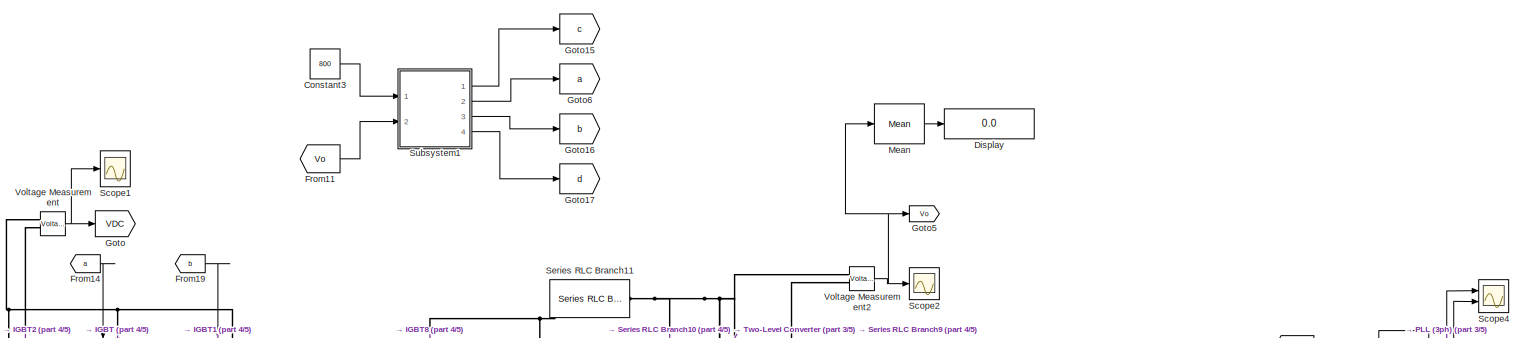
[diagram: root canvas - part 1/5, top center region]
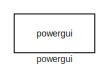
[diagram: root canvas - part 2/5, top left region]
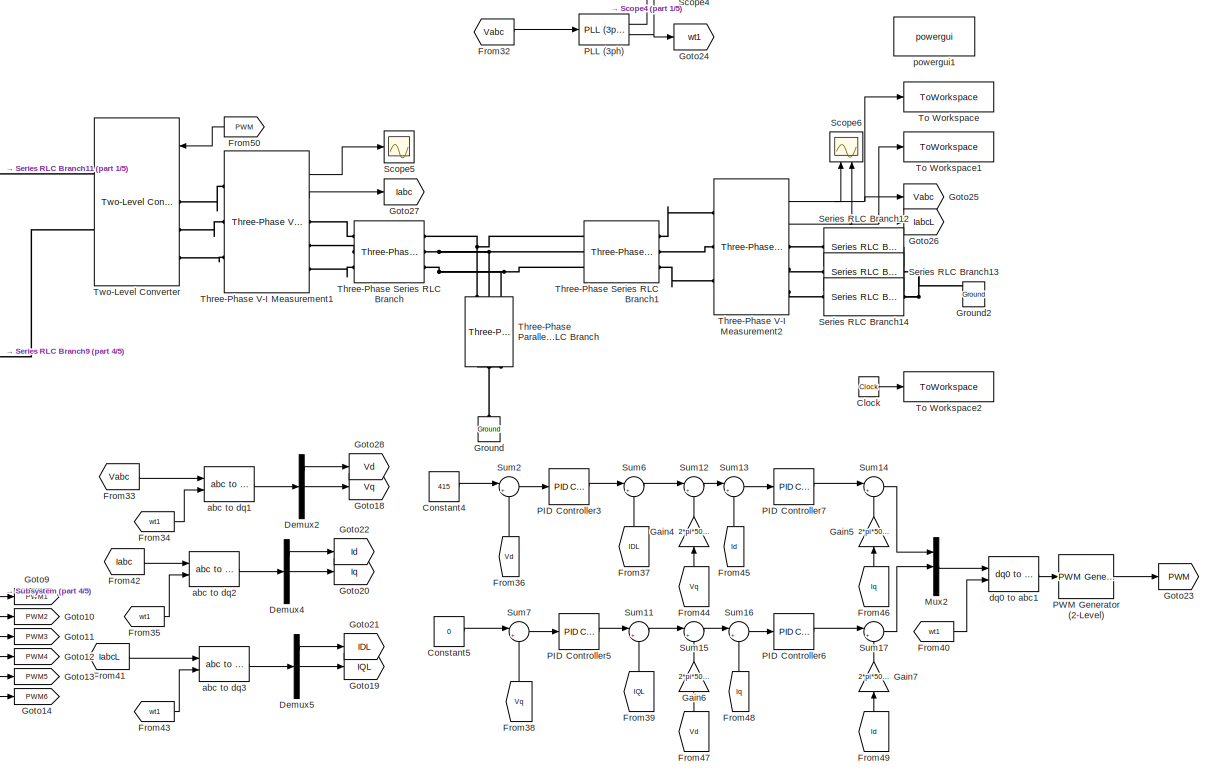
[diagram: root canvas - part 3/5, middle right region]
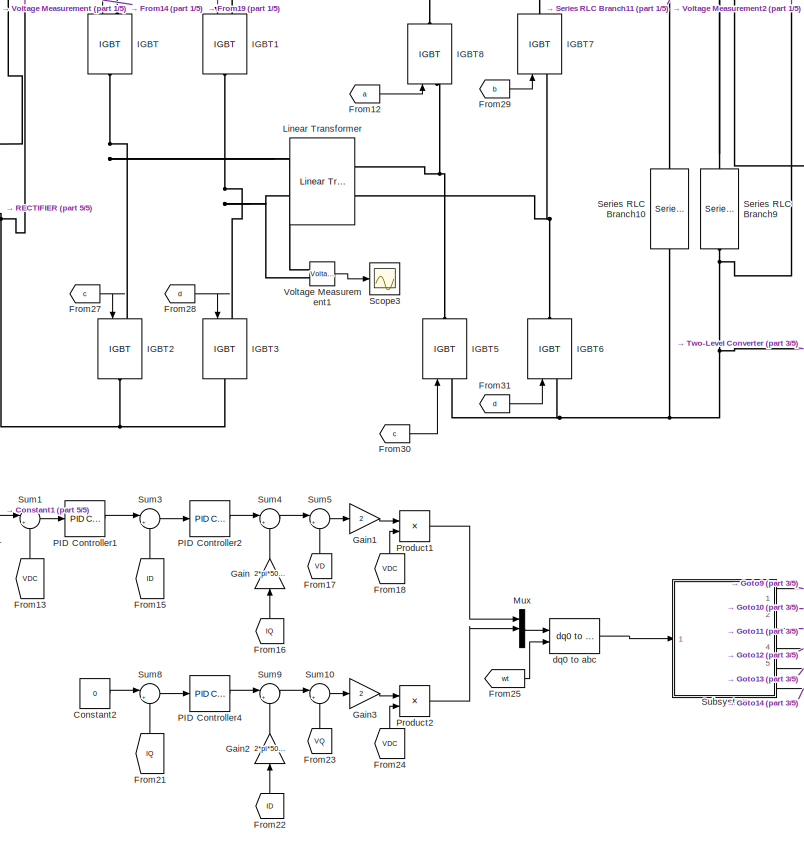
[diagram: root canvas - part 4/5, central region]
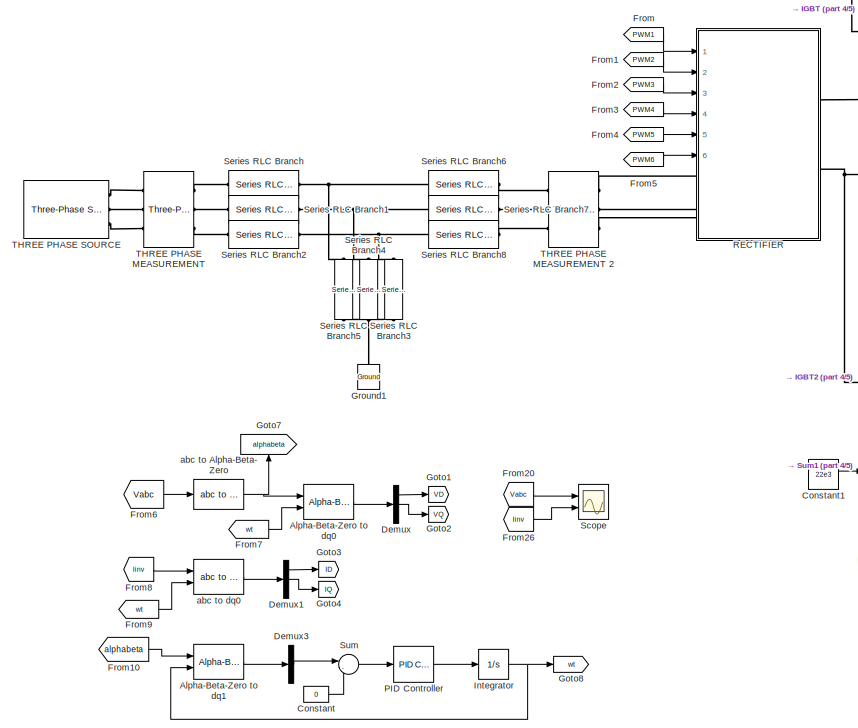
[diagram: root canvas - part 5/5, middle left region]
MODEL slx_5b53544572d5
KIND model
CONFIG AbsTol = auto
CONFIG EnableMultiTasking = off
CONFIG FixedStep = auto
CONFIG MaxStep = auto
CONFIG MinStep = auto
CONFIG RelTol = 1e-3
CONFIG SampleTimeConstraint = Unconstrained
CONFIG Solver = ode23t
CONFIG SolverName = ode23t
CONFIG StartTime = 0.0
CONFIG StopTime = 0.5
BLOCK [Reference] Alpha-Beta-Zero to dq0  REF=powerlib_meascontrol/Transformations/Alpha-Beta-Zero
to dq0
  Ports = [2, 1]
  SourceBlock = powerlib_meascontrol/Transformations/Alpha-Beta-Zero\nto dq0
  SourceProductBaseCode = PS
  SourceType = Alpha-Beta-Zero to dq0 Transformation
BLOCK [Reference] Alpha-Beta-Zero to dq1  REF=powerlib_meascontrol/Transformations/Alpha-Beta-Zero
to dq0
  Ports = [2, 1]
  SourceBlock = powerlib_meascontrol/Transformations/Alpha-Beta-Zero\nto dq0
  SourceProductBaseCode = PS
  SourceType = Alpha-Beta-Zero to dq0 Transformation
BLOCK [Clock] Clock
BLOCK [Constant] Constant
  Value = 0
BLOCK [Constant] Constant1
  Value = 22e3
BLOCK [Constant] Constant2
  Value = 0
BLOCK [Constant] Constant3
  Value = 800
BLOCK [Constant] Constant4
  Value = 415
BLOCK [Constant] Constant5
  Value = 0
BLOCK [Demux] Demux
  Outputs = 3
  Ports = [1, 3]
BLOCK [Demux] Demux1
  Outputs = 3
  Ports = [1, 3]
BLOCK [Demux] Demux2
  Outputs = 3
  Ports = [1, 3]
BLOCK [Demux] Demux3
  Outputs = 3
  Ports = [1, 3]
BLOCK [Demux] Demux4
  Outputs = 3
  Ports = [1, 3]
BLOCK [Demux] Demux5
  Outputs = 3
  Ports = [1, 3]
BLOCK [Display] Display
  Decimation = 1
  Ports = [1]
BLOCK [From] From
  GotoTag = PWM1
BLOCK [From] From1
  GotoTag = PWM2
BLOCK [From] From10
  GotoTag = alphabeta
BLOCK [From] From11
  GotoTag = Vo
BLOCK [From] From12
  GotoTag = a
BLOCK [From] From13
  GotoTag = VDC
  NameLocation = right
BLOCK [From] From14
  GotoTag = a
BLOCK [From] From15
  GotoTag = ID
  NameLocation = right
BLOCK [From] From16
  GotoTag = IQ
  NameLocation = right
BLOCK [From] From17
  GotoTag = VD
  NameLocation = right
BLOCK [From] From18
  GotoTag = VDC
  NameLocation = right
BLOCK [From] From19
  GotoTag = b
BLOCK [From] From2
  GotoTag = PWM3
BLOCK [From] From20
  GotoTag = Vabc
BLOCK [From] From21
  GotoTag = IQ
  NameLocation = right
BLOCK [From] From22
  GotoTag = ID
  NameLocation = right
BLOCK [From] From23
  GotoTag = VQ
  NameLocation = right
BLOCK [From] From24
  GotoTag = VDC
  NameLocation = right
BLOCK [From] From25
  GotoTag = wt
BLOCK [From] From26
  GotoTag = Iinv
  TagVisibility = global
BLOCK [From] From27
  GotoTag = c
BLOCK [From] From28
  GotoTag = d
BLOCK [From] From29
  GotoTag = b
BLOCK [From] From3
  GotoTag = PWM4
BLOCK [From] From30
  GotoTag = c
BLOCK [From] From31
  GotoTag = d
BLOCK [From] From32
  GotoTag = Vabc
BLOCK [From] From33
  GotoTag = Vabc
BLOCK [From] From34
  GotoTag = wt1
BLOCK [From] From35
  GotoTag = wt1
BLOCK [From] From36
  GotoTag = Vd
  NameLocation = right
BLOCK [From] From37
  GotoTag = IDL
  NameLocation = right
BLOCK [From] From38
  GotoTag = Vq
  NameLocation = right
BLOCK [From] From39
  GotoTag = IQL
  NameLocation = right
BLOCK [From] From4
  GotoTag = PWM5
BLOCK [From] From40
  GotoTag = wt1
BLOCK [From] From41
  GotoTag = IabcL
BLOCK [From] From42
  GotoTag = Iabc
BLOCK [From] From43
  GotoTag = wt1
BLOCK [From] From44
  GotoTag = Vq
  NameLocation = right
BLOCK [From] From45
  GotoTag = Id
  NameLocation = right
BLOCK [From] From46
  GotoTag = Iq
  NameLocation = right
BLOCK [From] From47
  GotoTag = Vd
  NameLocation = right
BLOCK [From] From48
  GotoTag = Iq
  NameLocation = right
BLOCK [From] From49
  GotoTag = Id
  NameLocation = right
BLOCK [From] From5
  GotoTag = PWM6
BLOCK [From] From50
  GotoTag = PWM
  NameLocation = top
BLOCK [From] From6
  GotoTag = Vabc
BLOCK [From] From7
  GotoTag = wt
BLOCK [From] From8
  GotoTag = Iinv
  TagVisibility = global
BLOCK [From] From9
  GotoTag = wt
BLOCK [Gain] Gain
  Gain = 2*pi*50*1000e-6
  NameLocation = right
BLOCK [Gain] Gain1
  Gain = 2
BLOCK [Gain] Gain2
  Gain = 2*pi*50*1000e-6
  NameLocation = right
BLOCK [Gain] Gain3
  Gain = 2
BLOCK [Gain] Gain4
  Gain = 2*pi*50*9.94e-6
  NameLocation = right
BLOCK [Gain] Gain5
  Gain = 2*pi*50*100.2e-3
  NameLocation = right
BLOCK [Gain] Gain6
  Gain = 2*pi*50*9.94e-6
  NameLocation = right
BLOCK [Gain] Gain7
  Gain = 2*pi*50*100.2e-3
  NameLocation = right
BLOCK [Goto] Goto
  GotoTag = VDC
BLOCK [Goto] Goto1
  GotoTag = VD
BLOCK [Goto] Goto10
  GotoTag = PWM2
BLOCK [Goto] Goto11
  GotoTag = PWM3
BLOCK [Goto] Goto12
  GotoTag = PWM4
BLOCK [Goto] Goto13
  GotoTag = PWM5
BLOCK [Goto] Goto14
  GotoTag = PWM6
BLOCK [Goto] Goto15
  GotoTag = c
BLOCK [Goto] Goto16
  GotoTag = b
BLOCK [Goto] Goto17
  GotoTag = d
BLOCK [Goto] Goto18
  GotoTag = Vq
BLOCK [Goto] Goto19
  GotoTag = IQL
BLOCK [Goto] Goto2
  GotoTag = VQ
BLOCK [Goto] Goto20
  GotoTag = Iq
BLOCK [Goto] Goto21
  GotoTag = IDL
BLOCK [Goto] Goto22
  GotoTag = Id
BLOCK [Goto] Goto23
  GotoTag = PWM
BLOCK [Goto] Goto24
  GotoTag = wt1
BLOCK [Goto] Goto25
  GotoTag = Vabc
BLOCK [Goto] Goto26
  GotoTag = IabcL
BLOCK [Goto] Goto27
  GotoTag = Iabc
BLOCK [Goto] Goto28
  GotoTag = Vd
BLOCK [Goto] Goto3
  GotoTag = ID
BLOCK [Goto] Goto4
  GotoTag = IQ
BLOCK [Goto] Goto5
  GotoTag = Vo
BLOCK [Goto] Goto6
  GotoTag = a
BLOCK [Goto] Goto7
  GotoTag = alphabeta
  NameLocation = right
BLOCK [Goto] Goto8
  GotoTag = wt
BLOCK [Goto] Goto9
  GotoTag = PWM1
BLOCK [Reference] Ground  REF=powerlib/Elements/Ground
  NameLocation = right
  Ports = [0, 0, 0, 0, 0, 1]
  SourceBlock = powerlib/Elements/Ground
  SourceProductBaseCode = PS
  SourceType = Ground
BLOCK [Reference] Ground1  REF=powerlib/Elements/Ground
  NameLocation = right
  Ports = [0, 0, 0, 0, 0, 1]
  SourceBlock = powerlib/Elements/Ground
  SourceProductBaseCode = PS
  SourceType = Ground
BLOCK [Reference] Ground2  REF=powerlib/Elements/Ground
  NameLocation = right
  Ports = [0, 0, 0, 0, 0, 1]
  SourceBlock = powerlib/Elements/Ground
  SourceProductBaseCode = PS
  SourceType = Ground
BLOCK [Reference] IGBT  REF=powerlib/Power
Electronics/IGBT
  NameLocation = left
  Ports = [1, 0, 0, 0, 0, 1, 1]
  SourceBlock = powerlib/Power\nElectronics/IGBT
  SourceProductBaseCode = PS
  SourceType = IGBT
BLOCK [Reference] IGBT1  REF=powerlib/Power
Electronics/IGBT
  NameLocation = left
  Ports = [1, 0, 0, 0, 0, 1, 1]
  SourceBlock = powerlib/Power\nElectronics/IGBT
  SourceProductBaseCode = PS
  SourceType = IGBT
BLOCK [Reference] IGBT2  REF=powerlib/Power
Electronics/IGBT
  NameLocation = left
  Ports = [1, 0, 0, 0, 0, 1, 1]
  SourceBlock = powerlib/Power\nElectronics/IGBT
  SourceProductBaseCode = PS
  SourceType = IGBT
BLOCK [Reference] IGBT3  REF=powerlib/Power
Electronics/IGBT
  NameLocation = left
  Ports = [1, 0, 0, 0, 0, 1, 1]
  SourceBlock = powerlib/Power\nElectronics/IGBT
  SourceProductBaseCode = PS
  SourceType = IGBT
BLOCK [Reference] IGBT5  REF=powerlib/Power
Electronics/IGBT
  NameLocation = right
  Ports = [1, 0, 0, 0, 0, 1, 1]
  SourceBlock = powerlib/Power\nElectronics/IGBT
  SourceProductBaseCode = PS
  SourceType = IGBT
BLOCK [Reference] IGBT6  REF=powerlib/Power
Electronics/IGBT
  NameLocation = right
  Ports = [1, 0, 0, 0, 0, 1, 1]
  SourceBlock = powerlib/Power\nElectronics/IGBT
  SourceProductBaseCode = PS
  SourceType = IGBT
BLOCK [Reference] IGBT7  REF=powerlib/Power
Electronics/IGBT
  NameLocation = right
  Ports = [1, 0, 0, 0, 0, 1, 1]
  SourceBlock = powerlib/Power\nElectronics/IGBT
  SourceProductBaseCode = PS
  SourceType = IGBT
BLOCK [Reference] IGBT8  REF=powerlib/Power
Electronics/IGBT
  NameLocation = right
  Ports = [1, 0, 0, 0, 0, 1, 1]
  SourceBlock = powerlib/Power\nElectronics/IGBT
  SourceProductBaseCode = PS
  SourceType = IGBT
BLOCK [Integrator] Integrator
  Ports = [1, 1]
BLOCK [Reference] Linear Transformer  REF=powerlib/Elements/Linear Transformer
  Ports = [0, 0, 0, 0, 0, 2, 2]
  SourceBlock = powerlib/Elements/Linear Transformer
  SourceProductBaseCode = PS
  SourceType = Linear Transformer
BLOCK [Reference] Mean  REF=powerlib_meascontrol/Measurements/Mean
  Ports = [1, 1]
  SourceBlock = powerlib_meascontrol/Measurements/Mean
  SourceProductBaseCode = PS
  SourceType = Mean
BLOCK [Mux] Mux
  DisplayOption = bar
  Inputs = 3
  Ports = [3, 1]
BLOCK [Mux] Mux2
  DisplayOption = bar
  Inputs = 3
  Ports = [3, 1]
BLOCK [Reference] PID Controller  REF=simulink/Continuous/PID Controller
  Ports = [1, 1]
  SourceBlock = simulink/Continuous/PID Controller
  SourceProductBaseCode = SL
  SourceType = PID 1dof
BLOCK [Reference] PID Controller1  REF=simulink/Continuous/PID Controller
  Ports = [1, 1]
  SourceBlock = simulink/Continuous/PID Controller
  SourceProductBaseCode = SL
  SourceType = PID 1dof
BLOCK [Reference] PID Controller2  REF=simulink/Continuous/PID Controller
  Ports = [1, 1]
  SourceBlock = simulink/Continuous/PID Controller
  SourceProductBaseCode = SL
  SourceType = PID 1dof
BLOCK [Reference] PID Controller3  REF=simulink/Continuous/PID Controller
  Ports = [1, 1]
  SourceBlock = simulink/Continuous/PID Controller
  SourceProductBaseCode = SL
  SourceType = PID 1dof
BLOCK [Reference] PID Controller4  REF=simulink/Continuous/PID Controller
  Ports = [1, 1]
  SourceBlock = simulink/Continuous/PID Controller
  SourceProductBaseCode = SL
  SourceType = PID 1dof
BLOCK [Reference] PID Controller5  REF=simulink/Continuous/PID Controller
  Ports = [1, 1]
  SourceBlock = simulink/Continuous/PID Controller
  SourceProductBaseCode = SL
  SourceType = PID 1dof
BLOCK [Reference] PID Controller6  REF=simulink/Continuous/PID Controller
  Ports = [1, 1]
  SourceBlock = simulink/Continuous/PID Controller
  SourceProductBaseCode = SL
  SourceType = PID 1dof
BLOCK [Reference] PID Controller7  REF=simulink/Continuous/PID Controller
  Ports = [1, 1]
  SourceBlock = simulink/Continuous/PID Controller
  SourceProductBaseCode = SL
  SourceType = PID 1dof
BLOCK [Reference] PLL (3ph)  REF=powerlib_meascontrol/PLL/PLL
(3ph)
  Ports = [1, 2]
  SourceBlock = powerlib_meascontrol/PLL/PLL\n(3ph)
  SourceProductBaseCode = PS
  SourceType = PLL (3ph)
BLOCK [Reference] PWM Generator (2-Level)  REF=powerlib_meascontrol/Pulse & Signal
Generators/PWM Generator
(2-Level)
  Ports = [1, 1]
  SourceBlock = powerlib_meascontrol/Pulse & Signal\nGenerators/PWM Generator\n(2-Level)
  SourceProductBaseCode = PS
  SourceType = PWM Generator (2-Level)
BLOCK [Product] Product1
  Inputs = */
  Ports = [2, 1]
BLOCK [Product] Product2
  Inputs = */
  Ports = [2, 1]
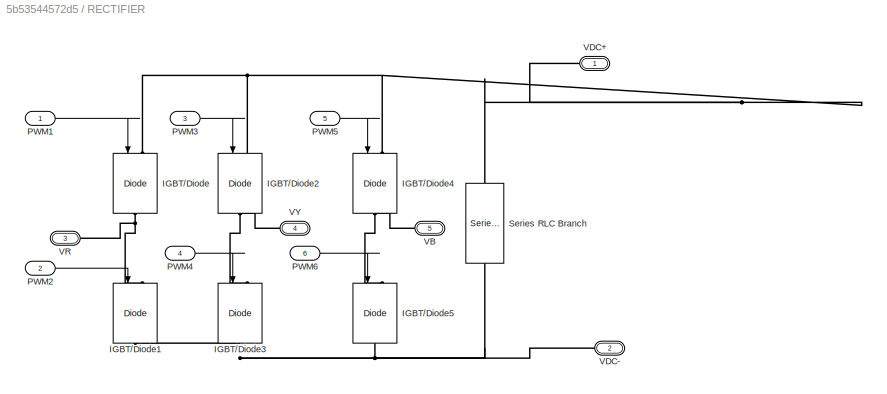
BLOCK [SubSystem] RECTIFIER
  Ports = [6, 0, 0, 0, 0, 3, 2]
  RequestExecContextInheritance = off
BLOCK [Reference] RECTIFIER/IGBT//Diode  REF=powerlib/Power
Electronics/IGBT//Diode
  NameLocation = left
  Ports = [1, 0, 0, 0, 0, 1, 1]
  SourceBlock = powerlib/Power\nElectronics/IGBT//Diode
  SourceProductBaseCode = PS
  SourceType = IGBT/Diode
BLOCK [Reference] RECTIFIER/IGBT//Diode1  REF=powerlib/Power
Electronics/IGBT//Diode
  NameLocation = left
  Ports = [1, 0, 0, 0, 0, 1, 1]
  SourceBlock = powerlib/Power\nElectronics/IGBT//Diode
  SourceProductBaseCode = PS
  SourceType = IGBT/Diode
BLOCK [Reference] RECTIFIER/IGBT//Diode2  REF=powerlib/Power
Electronics/IGBT//Diode
  NameLocation = left
  Ports = [1, 0, 0, 0, 0, 1, 1]
  SourceBlock = powerlib/Power\nElectronics/IGBT//Diode
  SourceProductBaseCode = PS
  SourceType = IGBT/Diode
BLOCK [Reference] RECTIFIER/IGBT//Diode3  REF=powerlib/Power
Electronics/IGBT//Diode
  NameLocation = left
  Ports = [1, 0, 0, 0, 0, 1, 1]
  SourceBlock = powerlib/Power\nElectronics/IGBT//Diode
  SourceProductBaseCode = PS
  SourceType = IGBT/Diode
BLOCK [Reference] RECTIFIER/IGBT//Diode4  REF=powerlib/Power
Electronics/IGBT//Diode
  NameLocation = left
  Ports = [1, 0, 0, 0, 0, 1, 1]
  SourceBlock = powerlib/Power\nElectronics/IGBT//Diode
  SourceProductBaseCode = PS
  SourceType = IGBT/Diode
BLOCK [Reference] RECTIFIER/IGBT//Diode5  REF=powerlib/Power
Electronics/IGBT//Diode
  NameLocation = left
  Ports = [1, 0, 0, 0, 0, 1, 1]
  SourceBlock = powerlib/Power\nElectronics/IGBT//Diode
  SourceProductBaseCode = PS
  SourceType = IGBT/Diode
BLOCK [Inport] RECTIFIER/PWM1
BLOCK [Inport] RECTIFIER/PWM2
  Port = 2
BLOCK [Inport] RECTIFIER/PWM3
  Port = 3
BLOCK [Inport] RECTIFIER/PWM4
  Port = 4
BLOCK [Inport] RECTIFIER/PWM5
  Port = 5
BLOCK [Inport] RECTIFIER/PWM6
  Port = 6
BLOCK [Reference] RECTIFIER/Series RLC Branch  REF=powerlib/Elements/Series RLC Branch
  NameLocation = left
  Ports = [0, 0, 0, 0, 0, 1, 1]
  SourceBlock = powerlib/Elements/Series RLC Branch
  SourceProductBaseCode = PS
  SourceType = Series RLC Branch
BLOCK [PMIOPort] RECTIFIER/VB
  NameLocation = top
  Port = 5
  Side = Left
BLOCK [PMIOPort] RECTIFIER/VDC+
  NameLocation = top
  Side = Right
BLOCK [PMIOPort] RECTIFIER/VDC-
  NameLocation = top
  Port = 2
  Side = Right
BLOCK [PMIOPort] RECTIFIER/VR
  Port = 3
  Side = Left
BLOCK [PMIOPort] RECTIFIER/VY
  NameLocation = top
  Port = 4
  Side = Left
BLOCK [Scope] Scope
  Floating = off
  NumInputPorts = 2
  Ports = [2]
  ScopeSpecificationString = Simulink.scopes.TimeScopeBlockCfg('CurrentConfiguration', extmgr.ConfigurationSet(extmgr.Configuration('Core','General UI',true,'FigureColor',[0.941176470588235 0.941176470588235 0.941176470588235]),extmgr.Configuration('Core','Source UI',true),extmgr.Configuration('Sources','WiredSimulink',true,'DataLoggingMaxPoints','10000'),extmgr.Configuration('Visuals','Time Domain',true,'SerializedDisplays',...<+2921ch>
BLOCK [Scope] Scope1
  Floating = off
  NumInputPorts = 1
  Ports = [1]
  ScopeSpecificationString = Simulink.scopes.TimeScopeBlockCfg('CurrentConfiguration', extmgr.ConfigurationSet(extmgr.Configuration('Core','General UI',true),extmgr.Configuration('Core','Source UI',true),extmgr.Configuration('Sources','WiredSimulink',true,'DataLoggingMaxPoints','10000','DataLoggingVariableName','ScopeData1'),extmgr.Configuration('Visuals','Time Domain',true,'SerializedDisplays',{struct('MinYLimReal','-28755.6...<+1545ch>
BLOCK [Scope] Scope2
  Floating = off
  NumInputPorts = 1
  Ports = [1]
  ScopeSpecificationString = Simulink.scopes.TimeScopeBlockCfg('CurrentConfiguration', extmgr.ConfigurationSet(extmgr.Configuration('Core','General UI',true,'FigureColor',[0.941176470588235 0.941176470588235 0.941176470588235]),extmgr.Configuration('Core','Source UI',true),extmgr.Configuration('Sources','WiredSimulink',true,'DataLoggingVariableName','ScopeData1'),extmgr.Configuration('Visuals','Time Domain',true,'SerializedDi...<+1893ch>
BLOCK [Scope] Scope3
  Floating = off
  NumInputPorts = 1
  Ports = [1]
  ScopeSpecificationString = Simulink.scopes.TimeScopeBlockCfg('CurrentConfiguration', extmgr.ConfigurationSet(extmgr.Configuration('Core','General UI',true,'FigureColor',[0.941176470588235 0.941176470588235 0.941176470588235]),extmgr.Configuration('Core','Source UI',true),extmgr.Configuration('Sources','WiredSimulink',true,'DataLoggingVariableName','ScopeData2'),extmgr.Configuration('Visuals','Time Domain',true,'SerializedDi...<+1876ch>
BLOCK [Scope] Scope4
  Floating = off
  NumInputPorts = 2
  Ports = [2]
  ScopeSpecificationString = Simulink.scopes.TimeScopeBlockCfg('CurrentConfiguration', extmgr.ConfigurationSet(extmgr.Configuration('Core','General UI',true),extmgr.Configuration('Core','Source UI',true),extmgr.Configuration('Sources','WiredSimulink',true,'DataLoggingVariableName','ScopeData3'),extmgr.Configuration('Visuals','Time Domain',true),extmgr.Configuration('Tools','Plot Navigation',true),extmgr.Configuration('Tools',...<+40ch>
BLOCK [Scope] Scope5
  Floating = off
  NumInputPorts = 1
  Ports = [1]
  ScopeSpecificationString = Simulink.scopes.TimeScopeBlockCfg('CurrentConfiguration', extmgr.ConfigurationSet(extmgr.Configuration('Core','General UI',true),extmgr.Configuration('Core','Source UI',true),extmgr.Configuration('Sources','WiredSimulink',true,'DataLoggingVariableName','ScopeData4'),extmgr.Configuration('Visuals','Time Domain',true),extmgr.Configuration('Tools','Plot Navigation',true),extmgr.Configuration('Tools',...<+40ch>
BLOCK [Scope] Scope6
  Floating = off
  NameLocation = right
  NumInputPorts = 2
  Ports = [2]
  ScopeSpecificationString = Simulink.scopes.TimeScopeBlockCfg('CurrentConfiguration', extmgr.ConfigurationSet(extmgr.Configuration('Core','General UI',true,'FigureColor',[0.941176470588235 0.941176470588235 0.941176470588235]),extmgr.Configuration('Core','Source UI',true),extmgr.Configuration('Sources','WiredSimulink',true,'DataLoggingVariableName','ScopeData5'),extmgr.Configuration('Visuals','Time Domain',true,'SerializedDi...<+3203ch>
BLOCK [Reference] Series RLC Branch  REF=powerlib/Elements/Series RLC Branch
  Ports = [0, 0, 0, 0, 0, 1, 1]
  SourceBlock = powerlib/Elements/Series RLC Branch
  SourceProductBaseCode = PS
  SourceType = Series RLC Branch
BLOCK [Reference] Series RLC Branch1  REF=powerlib/Elements/Series RLC Branch
  Ports = [0, 0, 0, 0, 0, 1, 1]
  SourceBlock = powerlib/Elements/Series RLC Branch
  SourceProductBaseCode = PS
  SourceType = Series RLC Branch
BLOCK [Reference] Series RLC Branch10  REF=powerlib/Elements/Series RLC Branch
  NameLocation = left
  Ports = [0, 0, 0, 0, 0, 1, 1]
  SourceBlock = powerlib/Elements/Series RLC Branch
  SourceProductBaseCode = PS
  SourceType = Series RLC Branch
BLOCK [Reference] Series RLC Branch11  REF=powerlib/Elements/Series RLC Branch
  NameLocation = top
  Ports = [0, 0, 0, 0, 0, 1, 1]
  SourceBlock = powerlib/Elements/Series RLC Branch
  SourceProductBaseCode = PS
  SourceType = Series RLC Branch
BLOCK [Reference] Series RLC Branch12  REF=powerlib/Elements/Series RLC Branch
  Ports = [0, 0, 0, 0, 0, 1, 1]
  SourceBlock = powerlib/Elements/Series RLC Branch
  SourceProductBaseCode = PS
  SourceType = Series RLC Branch
BLOCK [Reference] Series RLC Branch13  REF=powerlib/Elements/Series RLC Branch
  Ports = [0, 0, 0, 0, 0, 1, 1]
  SourceBlock = powerlib/Elements/Series RLC Branch
  SourceProductBaseCode = PS
  SourceType = Series RLC Branch
BLOCK [Reference] Series RLC Branch14  REF=powerlib/Elements/Series RLC Branch
  Ports = [0, 0, 0, 0, 0, 1, 1]
  SourceBlock = powerlib/Elements/Series RLC Branch
  SourceProductBaseCode = PS
  SourceType = Series RLC Branch
BLOCK [Reference] Series RLC Branch2  REF=powerlib/Elements/Series RLC Branch
  Ports = [0, 0, 0, 0, 0, 1, 1]
  SourceBlock = powerlib/Elements/Series RLC Branch
  SourceProductBaseCode = PS
  SourceType = Series RLC Branch
BLOCK [Reference] Series RLC Branch3  REF=powerlib/Elements/Series RLC Branch
  NameLocation = left
  Ports = [0, 0, 0, 0, 0, 1, 1]
  SourceBlock = powerlib/Elements/Series RLC Branch
  SourceProductBaseCode = PS
  SourceType = Series RLC Branch
BLOCK [Reference] Series RLC Branch4  REF=powerlib/Elements/Series RLC Branch
  NameLocation = left
  Ports = [0, 0, 0, 0, 0, 1, 1]
  SourceBlock = powerlib/Elements/Series RLC Branch
  SourceProductBaseCode = PS
  SourceType = Series RLC Branch
BLOCK [Reference] Series RLC Branch5  REF=powerlib/Elements/Series RLC Branch
  NameLocation = left
  Ports = [0, 0, 0, 0, 0, 1, 1]
  SourceBlock = powerlib/Elements/Series RLC Branch
  SourceProductBaseCode = PS
  SourceType = Series RLC Branch
BLOCK [Reference] Series RLC Branch6  REF=powerlib/Elements/Series RLC Branch
  Ports = [0, 0, 0, 0, 0, 1, 1]
  SourceBlock = powerlib/Elements/Series RLC Branch
  SourceProductBaseCode = PS
  SourceType = Series RLC Branch
BLOCK [Reference] Series RLC Branch7  REF=powerlib/Elements/Series RLC Branch
  Ports = [0, 0, 0, 0, 0, 1, 1]
  SourceBlock = powerlib/Elements/Series RLC Branch
  SourceProductBaseCode = PS
  SourceType = Series RLC Branch
BLOCK [Reference] Series RLC Branch8  REF=powerlib/Elements/Series RLC Branch
  Ports = [0, 0, 0, 0, 0, 1, 1]
  SourceBlock = powerlib/Elements/Series RLC Branch
  SourceProductBaseCode = PS
  SourceType = Series RLC Branch
BLOCK [Reference] Series RLC Branch9  REF=powerlib/Elements/Series RLC Branch
  NameLocation = left
  Ports = [0, 0, 0, 0, 0, 1, 1]
  SourceBlock = powerlib/Elements/Series RLC Branch
  SourceProductBaseCode = PS
  SourceType = Series RLC Branch
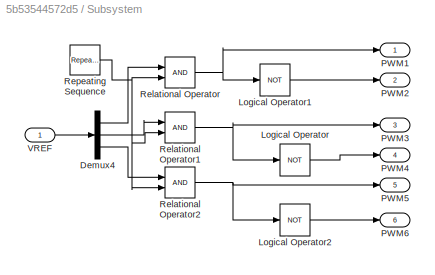
BLOCK [SubSystem] Subsystem
  Ports = [1, 6]
  RequestExecContextInheritance = off
BLOCK [Demux] Subsystem/Demux4
  Outputs = 3
  Ports = [1, 3]
BLOCK [Logic] Subsystem/Logical Operator
  AllPortsSameDT = off
  Operator = NOT
  OutDataTypeStr = boolean
  Ports = [1, 1]
BLOCK [Logic] Subsystem/Logical Operator1
  AllPortsSameDT = off
  Operator = NOT
  OutDataTypeStr = boolean
  Ports = [1, 1]
BLOCK [Logic] Subsystem/Logical Operator2
  AllPortsSameDT = off
  Operator = NOT
  OutDataTypeStr = boolean
  Ports = [1, 1]
BLOCK [Outport] Subsystem/PWM1
BLOCK [Outport] Subsystem/PWM2
  Port = 2
BLOCK [Outport] Subsystem/PWM3
  Port = 3
BLOCK [Outport] Subsystem/PWM4
  Port = 4
BLOCK [Outport] Subsystem/PWM5
  Port = 5
BLOCK [Outport] Subsystem/PWM6
  Port = 6
BLOCK [RelationalOperator] Subsystem/Relational Operator
  InputSameDT = off
  OutDataTypeStr = boolean
  Ports = [2, 1]
  RndMeth = Simplest
BLOCK [RelationalOperator] Subsystem/Relational Operator1
  InputSameDT = off
  OutDataTypeStr = boolean
  Ports = [2, 1]
  RndMeth = Simplest
BLOCK [RelationalOperator] Subsystem/Relational Operator2
  InputSameDT = off
  OutDataTypeStr = boolean
  Ports = [2, 1]
  RndMeth = Simplest
BLOCK [Reference] Subsystem/Repeating Sequence  REF=simulink/Sources/Repeating
Sequence
  Ports = [0, 1]
  SourceBlock = simulink/Sources/Repeating\nSequence
  SourceProductBaseCode = SL
  SourceType = Repeating table
BLOCK [Inport] Subsystem/VREF
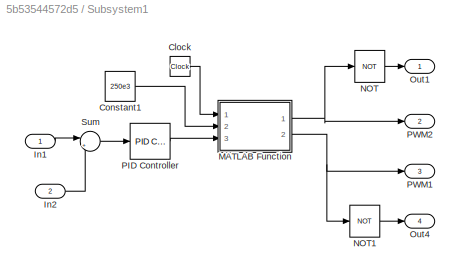
BLOCK [SubSystem] Subsystem1
  Ports = [2, 4]
  RequestExecContextInheritance = off
BLOCK [Clock] Subsystem1/Clock
BLOCK [Constant] Subsystem1/Constant1
  Value = 250e3
BLOCK [Inport] Subsystem1/In1
BLOCK [Inport] Subsystem1/In2
  Port = 2
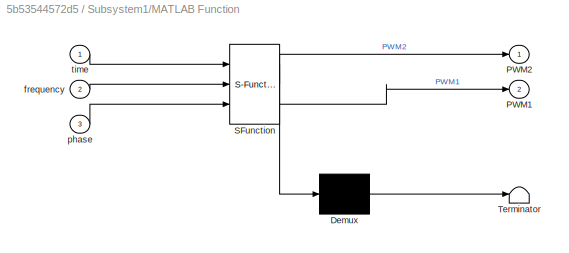
BLOCK [SubSystem] Subsystem1/MATLAB Function
  ErrorFcn = Stateflow.Translate.translate
  PermitHierarchicalResolution = ExplicitOnly
  Ports = [3, 2]
  RequestExecContextInheritance = off
  SFBlockType = MATLAB Function
  TreatAsAtomicUnit = on
BLOCK [Demux] Subsystem1/MATLAB Function/ Demux 
  Outputs = 1
  Ports = [1, 1]
BLOCK [S-Function] Subsystem1/MATLAB Function/ SFunction 
  EnableBusSupport = on
  FunctionName = sf_sfun
  PortCounts = [3 3]
  Ports = [3, 3]
  SFcnIsStateOwnerBlock = off
  SFunctionDeploymentMode = off
  Tag = Stateflow S-Function 2
BLOCK [Terminator] Subsystem1/MATLAB Function/ Terminator 
BLOCK [Outport] Subsystem1/MATLAB Function/PWM1
  Port = 2
BLOCK [Outport] Subsystem1/MATLAB Function/PWM2
BLOCK [Inport] Subsystem1/MATLAB Function/frequency
  Port = 2
BLOCK [Inport] Subsystem1/MATLAB Function/phase
  Port = 3
BLOCK [Inport] Subsystem1/MATLAB Function/time
BLOCK [Logic] Subsystem1/NOT
  AllPortsSameDT = off
  IconShape = distinctive
  Operator = NOT
  OutDataTypeStr = boolean
  Ports = [1, 1]
BLOCK [Logic] Subsystem1/NOT1
  AllPortsSameDT = off
  IconShape = distinctive
  Operator = NOT
  OutDataTypeStr = boolean
  Ports = [1, 1]
BLOCK [Outport] Subsystem1/Out1
BLOCK [Outport] Subsystem1/Out4
  Port = 4
BLOCK [Reference] Subsystem1/PID Controller  REF=simulink/Continuous/PID Controller
  Ports = [1, 1]
  SourceBlock = simulink/Continuous/PID Controller
  SourceProductBaseCode = SL
  SourceType = PID 1dof
BLOCK [Outport] Subsystem1/PWM1
  Port = 3
BLOCK [Outport] Subsystem1/PWM2
  Port = 2
BLOCK [Sum] Subsystem1/Sum
  Inputs = |+-
  Ports = [2, 1]
BLOCK [Sum] Sum
  Inputs = |-+
  Ports = [2, 1]
BLOCK [Sum] Sum1
  Inputs = |+-
  Ports = [2, 1]
BLOCK [Sum] Sum10
  Inputs = |++
  Ports = [2, 1]
BLOCK [Sum] Sum11
  Inputs = |++
  Ports = [2, 1]
BLOCK [Sum] Sum12
  Inputs = |+-
  Ports = [2, 1]
BLOCK [Sum] Sum13
  Inputs = |+-
  Ports = [2, 1]
BLOCK [Sum] Sum14
  Inputs = |+-
  Ports = [2, 1]
BLOCK [Sum] Sum15
  Inputs = |++
  Ports = [2, 1]
BLOCK [Sum] Sum16
  Inputs = |+-
  Ports = [2, 1]
BLOCK [Sum] Sum17
  Inputs = |++
  Ports = [2, 1]
BLOCK [Sum] Sum2
  Inputs = |+-
  Ports = [2, 1]
BLOCK [Sum] Sum3
  Inputs = |+-
  Ports = [2, 1]
BLOCK [Sum] Sum4
  Inputs = |++
  Ports = [2, 1]
BLOCK [Sum] Sum5
  Inputs = |++
  Ports = [2, 1]
BLOCK [Sum] Sum6
  Inputs = |+-
  Ports = [2, 1]
BLOCK [Sum] Sum7
  Inputs = |+-
  Ports = [2, 1]
BLOCK [Sum] Sum8
  Inputs = |+-
  Ports = [2, 1]
BLOCK [Sum] Sum9
  Inputs = |+-
  Ports = [2, 1]
BLOCK [Reference] THREE PHASE MEASUREMENT   REF=powerlib/Measurements/Three-Phase
V-I Measurement
  Ports = [0, 0, 0, 0, 0, 3, 3]
  SourceBlock = powerlib/Measurements/Three-Phase\nV-I Measurement
  SourceProductBaseCode = PS
  SourceType = Three-Phase VI Measurement
BLOCK [Reference] THREE PHASE MEASUREMENT 2  REF=powerlib/Measurements/Three-Phase
V-I Measurement
  Ports = [0, 0, 0, 0, 0, 3, 3]
  SourceBlock = powerlib/Measurements/Three-Phase\nV-I Measurement
  SourceProductBaseCode = PS
  SourceType = Three-Phase VI Measurement
BLOCK [Reference] THREE PHASE SOURCE  REF=powerlib/Electrical
Sources/Three-Phase Source
  Ports = [0, 0, 0, 0, 0, 0, 3]
  SourceBlock = powerlib/Electrical\nSources/Three-Phase Source
  SourceProductBaseCode = PS
  SourceType = Three-Phase Source
BLOCK [Reference] Three-Phase Parallel RLC Branch  REF=powerlib/Elements/Three-Phase
Parallel RLC Branch
  AttributesFormatString = \n
  NameLocation = left
  Ports = [0, 0, 0, 0, 0, 3, 3]
  SourceBlock = powerlib/Elements/Three-Phase\nParallel RLC Branch
  SourceProductBaseCode = PS
  SourceType = Three-Phase Parallel RLC Branch
BLOCK [Reference] Three-Phase Series RLC Branch  REF=powerlib/Elements/Three-Phase
Series RLC Branch
  AttributesFormatString = \n
  Ports = [0, 0, 0, 0, 0, 3, 3]
  SourceBlock = powerlib/Elements/Three-Phase\nSeries RLC Branch
  SourceProductBaseCode = PS
  SourceType = Three-Phase Series RLC Branch
BLOCK [Reference] Three-Phase Series RLC Branch1  REF=powerlib/Elements/Three-Phase
Series RLC Branch
  AttributesFormatString = \n
  Ports = [0, 0, 0, 0, 0, 3, 3]
  SourceBlock = powerlib/Elements/Three-Phase\nSeries RLC Branch
  SourceProductBaseCode = PS
  SourceType = Three-Phase Series RLC Branch
BLOCK [Reference] Three-Phase V-I Measurement1  REF=powerlib/Measurements/Three-Phase
V-I Measurement
  Ports = [0, 2, 0, 0, 0, 3, 3]
  SourceBlock = powerlib/Measurements/Three-Phase\nV-I Measurement
  SourceProductBaseCode = PS
  SourceType = Three-Phase VI Measurement
BLOCK [Reference] Three-Phase V-I Measurement2  REF=powerlib/Measurements/Three-Phase
V-I Measurement
  Ports = [0, 2, 0, 0, 0, 3, 3]
  SourceBlock = powerlib/Measurements/Three-Phase\nV-I Measurement
  SourceProductBaseCode = PS
  SourceType = Three-Phase VI Measurement
BLOCK [ToWorkspace] To Workspace
  FixptAsFi = on
  MaxDataPoints = inf
  Ports = [1]
  SampleTime = -1
  VariableName = VabcL
BLOCK [ToWorkspace] To Workspace1
  FixptAsFi = on
  MaxDataPoints = inf
  Ports = [1]
  SampleTime = -1
  VariableName = IabcL
BLOCK [ToWorkspace] To Workspace2
  FixptAsFi = on
  MaxDataPoints = inf
  Ports = [1]
  SampleTime = -1
  VariableName = t
BLOCK [Reference] Two-Level Converter  REF=powerlib/Power
Electronics/Two-Level Converter
  Ports = [2, 0, 0, 0, 0, 3, 2]
  SourceBlock = powerlib/Power\nElectronics/Two-Level Converter
  SourceProductBaseCode = PS
  SourceType = Two-Level Converter
BLOCK [Reference] Voltage Measurement  REF=powerlib/Measurements/Voltage Measurement
  Ports = [0, 1, 0, 0, 0, 2]
  SourceBlock = powerlib/Measurements/Voltage Measurement
  SourceProductBaseCode = PS
  SourceType = Voltage Measurement
  UserDataPersistent = on
BLOCK [Reference] Voltage Measurement1  REF=powerlib/Measurements/Voltage Measurement
  Ports = [0, 1, 0, 0, 0, 2]
  SourceBlock = powerlib/Measurements/Voltage Measurement
  SourceProductBaseCode = PS
  SourceType = Voltage Measurement
  UserDataPersistent = on
BLOCK [Reference] Voltage Measurement2  REF=powerlib/Measurements/Voltage Measurement
  Ports = [0, 1, 0, 0, 0, 2]
  SourceBlock = powerlib/Measurements/Voltage Measurement
  SourceProductBaseCode = PS
  SourceType = Voltage Measurement
  UserDataPersistent = on
BLOCK [Reference] abc to Alpha-Beta-Zero  REF=powerlib_meascontrol/Transformations/abc to
Alpha-Beta-Zero
  Ports = [1, 1]
  SourceBlock = powerlib_meascontrol/Transformations/abc to\nAlpha-Beta-Zero
  SourceProductBaseCode = PS
  SourceType = abc to Alpha-Beta-Zero Transformation
BLOCK [Reference] abc to dq0  REF=powerlib_meascontrol/Transformations/abc to dq0
  Ports = [2, 1]
  SourceBlock = powerlib_meascontrol/Transformations/abc to dq0
  SourceProductBaseCode = PS
  SourceType = abc to dq0 Transformation
BLOCK [Reference] abc to dq1  REF=powerlib_meascontrol/Transformations/abc to dq0
  Ports = [2, 1]
  SourceBlock = powerlib_meascontrol/Transformations/abc to dq0
  SourceProductBaseCode = PS
  SourceType = abc to dq0 Transformation
BLOCK [Reference] abc to dq2  REF=powerlib_meascontrol/Transformations/abc to dq0
  Ports = [2, 1]
  SourceBlock = powerlib_meascontrol/Transformations/abc to dq0
  SourceProductBaseCode = PS
  SourceType = abc to dq0 Transformation
BLOCK [Reference] abc to dq3  REF=powerlib_meascontrol/Transformations/abc to dq0
  Ports = [2, 1]
  SourceBlock = powerlib_meascontrol/Transformations/abc to dq0
  SourceProductBaseCode = PS
  SourceType = abc to dq0 Transformation
BLOCK [Reference] dq0 to abc  REF=powerlib_meascontrol/Transformations/dq0 to abc
  Ports = [2, 1]
  SourceBlock = powerlib_meascontrol/Transformations/dq0 to abc
  SourceProductBaseCode = PS
  SourceType = dq0 to abc Transformation
BLOCK [Reference] dq0 to abc1  REF=powerlib_meascontrol/Transformations/dq0 to abc
  Ports = [2, 1]
  SourceBlock = powerlib_meascontrol/Transformations/dq0 to abc
  SourceProductBaseCode = PS
  SourceType = dq0 to abc Transformation
BLOCK [Reference] powergui  REF=powerlib/powergui
  Ports = []
  Priority = 1
  SourceBlock = powerlib/powergui
  SourceProductBaseCode = PS
  SourceType = PSB option menu block
BLOCK [Reference] powergui1  REF=powerlib/powergui
  Ports = []
  Priority = 1
  SourceBlock = powerlib/powergui
  SourceProductBaseCode = PS
  SourceType = PSB option menu block
LINE Alpha-Beta-Zero to dq0:1 -> Demux:1
LINE Alpha-Beta-Zero to dq1:1 -> Demux3:1
LINE Clock:1 -> To Workspace2:1
LINE Constant1:1 -> Sum1:1
LINE Constant2:1 -> Sum8:1
LINE Constant3:1 -> Subsystem1:1
LINE Constant4:1 -> Sum2:1
LINE Constant5:1 -> Sum7:1
LINE Constant:1 -> Sum:2
LINE Demux1:1 -> Goto3:1
LINE Demux1:2 -> Goto4:1
LINE Demux2:1 -> Goto28:1
LINE Demux2:2 -> Goto18:1
LINE Demux3:2 -> Sum:1
LINE Demux4:1 -> Goto22:1
LINE Demux4:2 -> Goto20:1
LINE Demux5:1 -> Goto21:1
LINE Demux5:2 -> Goto19:1
LINE Demux:1 -> Goto1:1
LINE Demux:2 -> Goto2:1
LINE From10:1 -> Alpha-Beta-Zero to dq1:1
LINE From11:1 -> Subsystem1:2
LINE From12:1 -> IGBT8:1
LINE From13:1 -> Sum1:2
LINE From14:1 -> IGBT:1
LINE From15:1 -> Sum3:2
LINE From16:1 -> Gain:1
LINE From17:1 -> Sum5:2
LINE From18:1 -> Product1:2
LINE From19:1 -> IGBT1:1
LINE From1:1 -> RECTIFIER:2
LINE From20:1 -> Scope:1
LINE From21:1 -> Sum8:2
LINE From22:1 -> Gain2:1
LINE From23:1 -> Sum10:2
LINE From24:1 -> Product2:2
LINE From25:1 -> dq0 to abc:2
LINE From26:1 -> Scope:2
LINE From27:1 -> IGBT2:1
LINE From28:1 -> IGBT3:1
LINE From29:1 -> IGBT7:1
LINE From2:1 -> RECTIFIER:3
LINE From30:1 -> IGBT5:1
LINE From31:1 -> IGBT6:1
LINE From32:1 -> PLL (3ph):1
LINE From33:1 -> abc to dq1:1
LINE From34:1 -> abc to dq1:2
LINE From35:1 -> abc to dq2:2
LINE From36:1 -> Sum2:2
LINE From37:1 -> Sum6:2
LINE From38:1 -> Sum7:2
LINE From39:1 -> Sum11:2
LINE From3:1 -> RECTIFIER:4
LINE From40:1 -> dq0 to abc1:2
LINE From41:1 -> abc to dq3:1
LINE From42:1 -> abc to dq2:1
LINE From43:1 -> abc to dq3:2
LINE From44:1 -> Gain4:1
LINE From45:1 -> Sum13:2
LINE From46:1 -> Gain5:1
LINE From47:1 -> Gain6:1
LINE From48:1 -> Sum16:2
LINE From49:1 -> Gain7:1
LINE From4:1 -> RECTIFIER:5
LINE From50:1 -> Two-Level Converter:1
LINE From5:1 -> RECTIFIER:6
LINE From6:1 -> abc to Alpha-Beta-Zero:1
LINE From7:1 -> Alpha-Beta-Zero to dq0:2
LINE From8:1 -> abc to dq0:1
LINE From9:1 -> abc to dq0:2
LINE From:1 -> RECTIFIER:1
LINE Gain1:1 -> Product1:1
LINE Gain2:1 -> Sum9:2
LINE Gain3:1 -> Product2:1
LINE Gain4:1 -> Sum12:2
LINE Gain5:1 -> Sum14:2
LINE Gain6:1 -> Sum15:2
LINE Gain7:1 -> Sum17:2
LINE Gain:1 -> Sum4:2
NET Integrator:1 -> Alpha-Beta-Zero to dq1:2, Goto8:1
LINE Mean:1 -> Display:1
LINE Mux2:1 -> dq0 to abc1:1
LINE Mux:1 -> dq0 to abc:1
LINE PID Controller1:1 -> Sum3:1
LINE PID Controller2:1 -> Sum4:1
LINE PID Controller3:1 -> Sum6:1
LINE PID Controller4:1 -> Sum9:1
LINE PID Controller5:1 -> Sum11:1
LINE PID Controller6:1 -> Sum17:1
LINE PID Controller7:1 -> Sum14:1
LINE PID Controller:1 -> Integrator:1
LINE PLL (3ph):1 -> Scope4:1
NET PLL (3ph):2 -> Goto24:1, Scope4:2
LINE PWM Generator (2-Level):1 -> Goto23:1
LINE Product1:1 -> Mux:1
LINE Product2:1 -> Mux:2
LINE RECTIFIER/PWM1:1 -> RECTIFIER/IGBT//Diode:1
LINE RECTIFIER/PWM2:1 -> RECTIFIER/IGBT//Diode1:1
LINE RECTIFIER/PWM3:1 -> RECTIFIER/IGBT//Diode2:1
LINE RECTIFIER/PWM4:1 -> RECTIFIER/IGBT//Diode3:1
LINE RECTIFIER/PWM5:1 -> RECTIFIER/IGBT//Diode4:1
LINE RECTIFIER/PWM6:1 -> RECTIFIER/IGBT//Diode5:1
LINE Subsystem/Demux4:1 -> Subsystem/Relational Operator:1
LINE Subsystem/Demux4:2 -> Subsystem/Relational Operator1:1
LINE Subsystem/Demux4:3 -> Subsystem/Relational Operator2:1
LINE Subsystem/Logical Operator1:1 -> Subsystem/PWM2:1
LINE Subsystem/Logical Operator2:1 -> Subsystem/PWM6:1
LINE Subsystem/Logical Operator:1 -> Subsystem/PWM4:1
NET Subsystem/Relational Operator1:1 -> Subsystem/Logical Operator:1, Subsystem/PWM3:1
NET Subsystem/Relational Operator2:1 -> Subsystem/Logical Operator2:1, Subsystem/PWM5:1
NET Subsystem/Relational Operator:1 -> Subsystem/Logical Operator1:1, Subsystem/PWM1:1
NET Subsystem/Repeating Sequence:1 -> Subsystem/Relational Operator1:2, Subsystem/Relational Operator2:2, Subsystem/Relational Operator:2
LINE Subsystem/VREF:1 -> Subsystem/Demux4:1
LINE Subsystem1/Clock:1 -> Subsystem1/MATLAB Function:1
LINE Subsystem1/Constant1:1 -> Subsystem1/MATLAB Function:2
LINE Subsystem1/In1:1 -> Subsystem1/Sum:1
LINE Subsystem1/In2:1 -> Subsystem1/Sum:2
NET Subsystem1/MATLAB Function:1 -> Subsystem1/NOT:1, Subsystem1/PWM2:1
NET Subsystem1/MATLAB Function:2 -> Subsystem1/NOT1:1, Subsystem1/PWM1:1
LINE Subsystem1/NOT1:1 -> Subsystem1/Out4:1
LINE Subsystem1/NOT:1 -> Subsystem1/Out1:1
LINE Subsystem1/PID Controller:1 -> Subsystem1/MATLAB Function:3
LINE Subsystem1/Sum:1 -> Subsystem1/PID Controller:1
LINE Subsystem1:1 -> Goto15:1
LINE Subsystem1:2 -> Goto6:1
LINE Subsystem1:3 -> Goto16:1
LINE Subsystem1:4 -> Goto17:1
LINE Subsystem:1 -> Goto9:1
LINE Subsystem:2 -> Goto10:1
LINE Subsystem:3 -> Goto11:1
LINE Subsystem:4 -> Goto12:1
LINE Subsystem:5 -> Goto13:1
LINE Subsystem:6 -> Goto14:1
LINE Sum10:1 -> Gain3:1
LINE Sum11:1 -> Sum15:1
LINE Sum12:1 -> Sum13:1
LINE Sum13:1 -> PID Controller7:1
LINE Sum14:1 -> Mux2:1
LINE Sum15:1 -> Sum16:1
LINE Sum16:1 -> PID Controller6:1
LINE Sum17:1 -> Mux2:2
LINE Sum1:1 -> PID Controller1:1
LINE Sum2:1 -> PID Controller3:1
LINE Sum3:1 -> PID Controller2:1
LINE Sum4:1 -> Sum5:1
LINE Sum5:1 -> Gain1:1
LINE Sum6:1 -> Sum12:1
LINE Sum7:1 -> PID Controller5:1
LINE Sum8:1 -> PID Controller4:1
LINE Sum9:1 -> Sum10:1
LINE Sum:1 -> PID Controller:1
LINE Three-Phase V-I Measurement1:1 -> Scope5:1
LINE Three-Phase V-I Measurement1:2 -> Goto27:1
NET Three-Phase V-I Measurement2:1 -> Goto25:1, Scope6:1, To Workspace:1
NET Three-Phase V-I Measurement2:2 -> Goto26:1, Scope6:2, To Workspace1:1
LINE Voltage Measurement1:1 -> Scope3:1
NET Voltage Measurement2:1 -> Goto5:1, Mean:1, Scope2:1
NET Voltage Measurement:1 -> Goto:1, Scope1:1
NET abc to Alpha-Beta-Zero:1 -> Alpha-Beta-Zero to dq0:1, Goto7:1
LINE abc to dq0:1 -> Demux1:1
LINE abc to dq1:1 -> Demux2:1
LINE abc to dq2:1 -> Demux4:1
LINE abc to dq3:1 -> Demux5:1
LINE dq0 to abc1:1 -> PWM Generator (2-Level):1
LINE dq0 to abc:1 -> Subsystem:1
PNET net1: Ground1:LConn1 -- Series RLC Branch3:RConn1 -- Series RLC Branch4:RConn1 -- Series RLC Branch5:RConn1
PNET net2: Ground2:LConn1 -- Series RLC Branch12:RConn1 -- Series RLC Branch13:RConn1 -- Series RLC Branch14:RConn1
PNET net3: Ground:LConn1 -- Three-Phase Parallel RLC Branch:RConn1 -- Three-Phase Parallel RLC Branch:RConn2 -- Three-Phase Parallel RLC Branch:RConn3
PNET net4: IGBT1:LConn1 -- IGBT:LConn1 -- RECTIFIER:RConn1 -- Voltage Measurement:LConn1
PNET net5: IGBT1:RConn1 -- IGBT3:LConn1 -- Linear Transformer:LConn2 -- Voltage Measurement1:LConn2
PNET net6: IGBT2:LConn1 -- IGBT:RConn1 -- Linear Transformer:LConn1 -- Voltage Measurement1:LConn1
PNET net7: IGBT2:RConn1 -- IGBT3:RConn1 -- RECTIFIER:RConn2 -- Voltage Measurement:LConn2
PNET net8: IGBT5:LConn1 -- IGBT6:LConn1 -- Series RLC Branch10:RConn1 -- Series RLC Branch9:RConn1 -- Two-Level Converter:RConn2 -- Voltage Measurement2:LConn2
PNET net9: IGBT5:RConn1 -- IGBT8:LConn1 -- Linear Transformer:RConn1
PNET net10: IGBT6:RConn1 -- IGBT7:LConn1 -- Linear Transformer:RConn2
PNET net11: IGBT7:RConn1 -- IGBT8:RConn1 -- Series RLC Branch11:RConn1
PNET net12: RECTIFIER/IGBT//Diode1:LConn1 -- RECTIFIER/IGBT//Diode:RConn1 -- RECTIFIER/VR:RConn1
PNET net13: RECTIFIER/IGBT//Diode1:RConn1 -- RECTIFIER/IGBT//Diode3:RConn1 -- RECTIFIER/IGBT//Diode5:RConn1 -- RECTIFIER/Series RLC Branch:RConn1 -- RECTIFIER/VDC-:RConn1
PNET net14: RECTIFIER/IGBT//Diode2:LConn1 -- RECTIFIER/IGBT//Diode4:LConn1 -- RECTIFIER/IGBT//Diode:LConn1 -- RECTIFIER/Series RLC Branch:LConn1 -- RECTIFIER/VDC+:RConn1
PNET net15: RECTIFIER/IGBT//Diode2:RConn1 -- RECTIFIER/IGBT//Diode3:LConn1 -- RECTIFIER/VY:RConn1
PNET net16: RECTIFIER/IGBT//Diode4:RConn1 -- RECTIFIER/IGBT//Diode5:LConn1 -- RECTIFIER/VB:RConn1
PLINE RECTIFIER:LConn1 -- THREE PHASE MEASUREMENT 2:LConn1
PLINE RECTIFIER:LConn2 -- THREE PHASE MEASUREMENT 2:LConn2
PLINE RECTIFIER:LConn3 -- THREE PHASE MEASUREMENT 2:LConn3
PNET net17: Series RLC Branch10:LConn1 -- Series RLC Branch11:LConn1 -- Series RLC Branch9:LConn1 -- Two-Level Converter:RConn1 -- Voltage Measurement2:LConn1
PLINE Series RLC Branch12:LConn1 -- Three-Phase V-I Measurement2:RConn1
PLINE Series RLC Branch13:LConn1 -- Three-Phase V-I Measurement2:RConn2
PLINE Series RLC Branch14:LConn1 -- Three-Phase V-I Measurement2:RConn3
PLINE Series RLC Branch1:LConn1 -- THREE PHASE MEASUREMENT :RConn2
PNET net18: Series RLC Branch1:RConn1 -- Series RLC Branch4:LConn1 -- Series RLC Branch7:LConn1
PLINE Series RLC Branch2:LConn1 -- THREE PHASE MEASUREMENT :RConn3
PNET net19: Series RLC Branch2:RConn1 -- Series RLC Branch3:LConn1 -- Series RLC Branch8:LConn1
PNET net20: Series RLC Branch5:LConn1 -- Series RLC Branch6:LConn1 -- Series RLC Branch:RConn1
PLINE Series RLC Branch6:RConn1 -- THREE PHASE MEASUREMENT 2:RConn1
PLINE Series RLC Branch7:RConn1 -- THREE PHASE MEASUREMENT 2:RConn2
PLINE Series RLC Branch8:RConn1 -- THREE PHASE MEASUREMENT 2:RConn3
PLINE Series RLC Branch:LConn1 -- THREE PHASE MEASUREMENT :RConn1
PLINE THREE PHASE MEASUREMENT :LConn1 -- THREE PHASE SOURCE:RConn1
PLINE THREE PHASE MEASUREMENT :LConn2 -- THREE PHASE SOURCE:RConn2
PLINE THREE PHASE MEASUREMENT :LConn3 -- THREE PHASE SOURCE:RConn3
PNET net21: Three-Phase Parallel RLC Branch:LConn1 -- Three-Phase Series RLC Branch1:LConn1 -- Three-Phase Series RLC Branch:RConn1
PNET net22: Three-Phase Parallel RLC Branch:LConn2 -- Three-Phase Series RLC Branch1:LConn2 -- Three-Phase Series RLC Branch:RConn2
PNET net23: Three-Phase Parallel RLC Branch:LConn3 -- Three-Phase Series RLC Branch1:LConn3 -- Three-Phase Series RLC Branch:RConn3
PLINE Three-Phase Series RLC Branch1:RConn1 -- Three-Phase V-I Measurement2:LConn1
PLINE Three-Phase Series RLC Branch1:RConn2 -- Three-Phase V-I Measurement2:LConn2
PLINE Three-Phase Series RLC Branch1:RConn3 -- Three-Phase V-I Measurement2:LConn3
PLINE Three-Phase Series RLC Branch:LConn1 -- Three-Phase V-I Measurement1:RConn1
PLINE Three-Phase Series RLC Branch:LConn2 -- Three-Phase V-I Measurement1:RConn2
PLINE Three-Phase Series RLC Branch:LConn3 -- Three-Phase V-I Measurement1:RConn3
PLINE Three-Phase V-I Measurement1:LConn1 -- Two-Level Converter:LConn1
PLINE Three-Phase V-I Measurement1:LConn2 -- Two-Level Converter:LConn2
PLINE Three-Phase V-I Measurement1:LConn3 -- Two-Level Converter:LConn3
note: NET lines group one-source signal fan-out (src -> all destinations, sorted); 1:1 wires keep LINE; PNET lines group multi-terminal physical nets as a canonical sorted terminal list (undirected conserving connections); 2-terminal nets keep the pairwise PLINE form
CHART Subsystem1/MATLAB Function states=1 transitions=1
  STATE_LABEL 'eML_blk_kernel()'
  STATE_LABEL 'SCRIPT:\nfunction [PWM2, PWM1] = fcn(time, frequency, phase)\nT_switching = 1/frequency;\nPWM1 = 0;\nPWM2 = 0;\nx = mod(time, T_switching);\nif x< T_switching/2\n    PWM1 =1;\nend\nt_phi = T_switching*phase/360;\ny = mod(time+t_phi, T_switching);\nif y < T_switching/2\n    PWM2 = 1;\nend\n\n\n'
CHART  states=0 transitions=0
